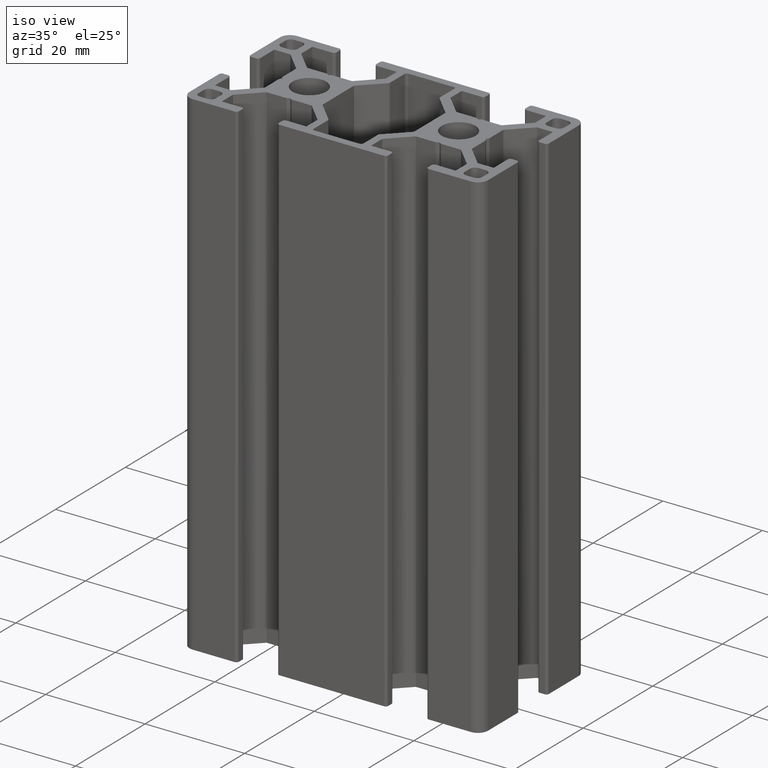
[diagram: clean part render]
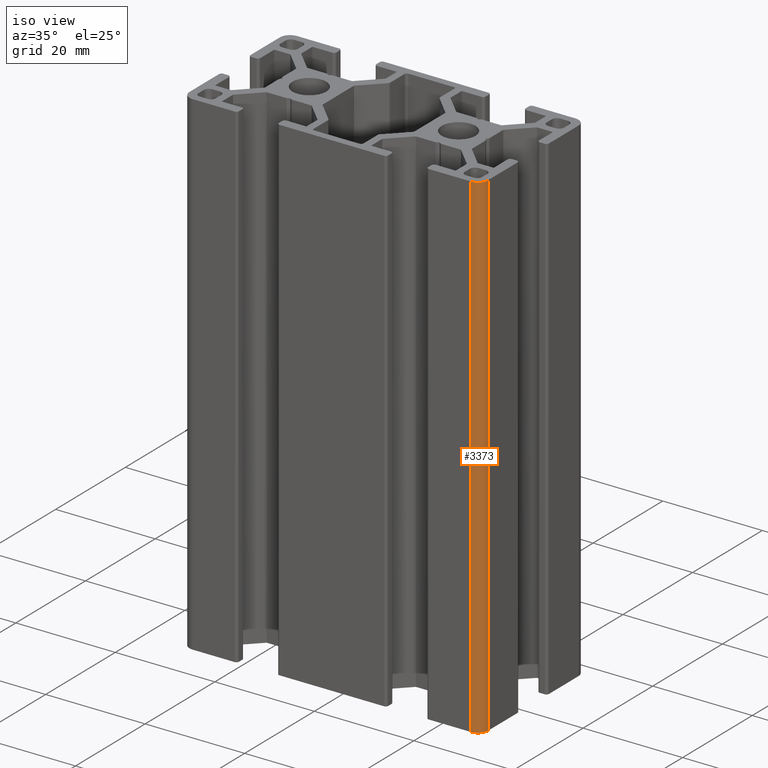
[diagram: same view with one face highlighted and labeled with its STEP entity id]
A machine part, iso view. The second image highlights one B-rep face of the part: STEP entity #3373.
In plain terms, the highlighted cylindrical surface (edge-blend (fillet) strip) has radius 2 mm, axis along (0, 0, 1).
Its self-contained STEP definition (entity closure, byte-faithful):
#132=CIRCLE('',#3642,1.99999999999999);
#135=CIRCLE('',#3646,1.99999999999999);
#189=CYLINDRICAL_SURFACE('',#3645,1.99999999999999);
#351=FACE_OUTER_BOUND('',#526,.T.);
#526=EDGE_LOOP('',(#2911,#2912,#2913,#2914));
#899=LINE('',#5516,#1281);
#918=LINE('',#5558,#1300);
#1281=VECTOR('',#4521,100.);
#1300=VECTOR('',#4564,100.);
#1619=VERTEX_POINT('',#5513);
#1620=VERTEX_POINT('',#5515);
#1629=VERTEX_POINT('',#5547);
#1631=VERTEX_POINT('',#5556);
#2091=EDGE_CURVE('',#1619,#1620,#899,.T.);
#2108=EDGE_CURVE('',#1629,#1620,#132,.T.);
#2114=EDGE_CURVE('',#1631,#1619,#135,.T.);
#2115=EDGE_CURVE('',#1631,#1629,#918,.T.);
#2911=ORIENTED_EDGE('',*,*,#2108,.T.);
#2912=ORIENTED_EDGE('',*,*,#2091,.F.);
#2913=ORIENTED_EDGE('',*,*,#2114,.F.);
#2914=ORIENTED_EDGE('',*,*,#2115,.T.);
#3373=ADVANCED_FACE('',(#351),#189,.T.);
#3642=AXIS2_PLACEMENT_3D('',#5548,#4551,#4552);
#3645=AXIS2_PLACEMENT_3D('',#5555,#4560,#4561);
#3646=AXIS2_PLACEMENT_3D('',#5557,#4562,#4563);
#4521=DIRECTION('',(0.,0.,1.));
#4551=DIRECTION('center_axis',(0.,0.,-1.));
#4552=DIRECTION('ref_axis',(-2.22044604925032E-15,-1.,0.));
#4560=DIRECTION('center_axis',(0.,0.,1.));
#4561=DIRECTION('ref_axis',(-2.22044604925032E-15,-1.,0.));
#4562=DIRECTION('center_axis',(0.,0.,-1.));
#4563=DIRECTION('ref_axis',(-2.22044604925032E-15,-1.,0.));
#4564=DIRECTION('',(0.,0.,1.));
#5513=CARTESIAN_POINT('',(27.99999667,-14.99999667,0.));
#5515=CARTESIAN_POINT('',(27.99999667,-14.99999667,100.));
#5516=CARTESIAN_POINT('',(27.99999667,-14.99999667,0.));
#5547=CARTESIAN_POINT('',(29.99999667,-12.99999667,100.));
#5548=CARTESIAN_POINT('Origin',(27.99999667,-12.9999966700001,100.));
#5555=CARTESIAN_POINT('Origin',(27.99999667,-12.9999966700001,0.));
#5556=CARTESIAN_POINT('',(29.99999667,-12.99999667,0.));
#5557=CARTESIAN_POINT('Origin',(27.99999667,-12.9999966700001,0.));
#5558=CARTESIAN_POINT('',(29.99999667,-12.99999667,0.));